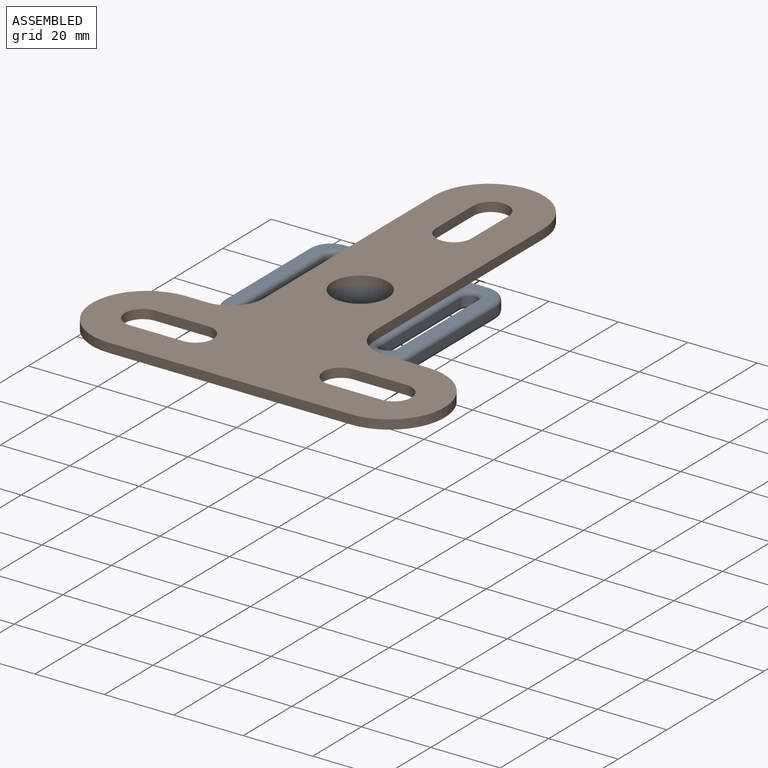
[diagram: assembled view]
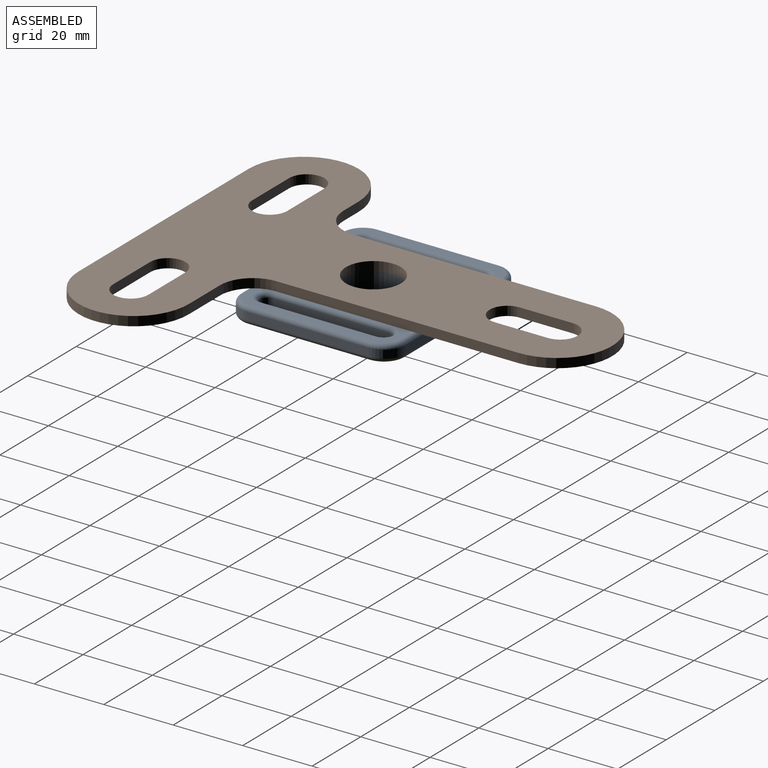
[diagram: assembled view, second angle]
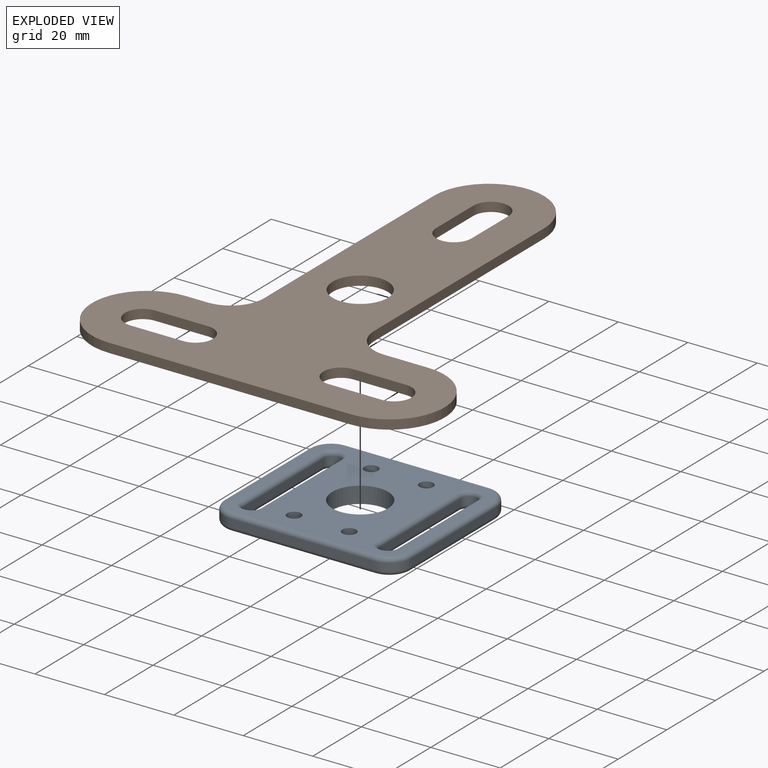
[diagram: exploded view]
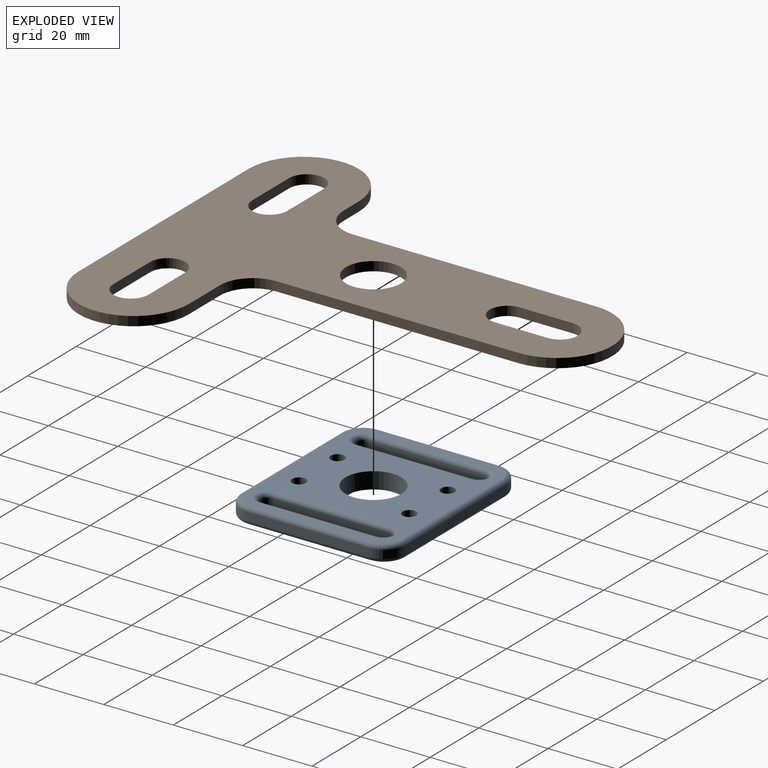
[diagram: exploded view, second angle]
ASSEMBLY  parts=2 mates=2
PART A: 55 faces, bbox 55x48.7x4.8 mm
  f0: plane 51.44x45.09mm, normal (0,0,1), area 1471.5mm2, adj f15,f19,f20,f21,f22,f31,f32,f33
  f1: plane 51.44x45.09mm, normal (0,0,-1), area 1471.5mm2, adj f15,f19,f20,f21,f22,f23,f24,f25
  f2: plane 41.28x2.22mm, normal (0,1,0), area 91.7mm2, adj f3,f18,f25,f31
  f3: cylinder r=6.35mm len=6.35mm, axis (0,0,-1), area 22.2mm2, adj f2,f4,f23,f32
  f4: plane 34.93x2.22mm, normal (-1,0,0), area 77.6mm2, adj f3,f5,f24,f34
  f5: cylinder r=6.35mm len=6.35mm, axis (0,0,-1), area 22.2mm2, adj f4,f6,f26,f36
  f6: plane 41.28x2.22mm, normal (0,-1,0), area 91.7mm2, adj f5,f7,f28,f38
  f7: cylinder r=6.35mm len=6.35mm, axis (0,0,-1), area 22.2mm2, adj f6,f8,f30,f37
  f8: plane 34.93x2.22mm, normal (1,0,0), area 77.6mm2, adj f7,f18,f29,f35
  f9: plane 33.33x2.22mm, normal (1,0,0), area 74.1mm2, adj f10,f16,f39,f49
  f10: cylinder r=2.39mm len=4.78mm, axis (0,0,-1), area 16.7mm2, adj f9,f11,f40,f47
  f11: plane 33.33x2.22mm, normal (-1,0,0), area 74.1mm2, adj f10,f16,f42,f48
  f12: plane 33.33x2.22mm, normal (1,0,0), area 74.1mm2, adj f13,f17,f43,f53
  f13: cylinder r=2.39mm len=4.78mm, axis (0,0,-1), area 16.7mm2, adj f12,f14,f44,f51
  f14: plane 33.33x2.22mm, normal (-1,0,0), area 74.1mm2, adj f13,f17,f46,f52
  f15: cylinder r=8.06mm len=16.13mm, axis (0,0,-1), area 241.3mm2, adj f0,f1
  f16: cylinder r=2.39mm len=4.78mm, axis (0,0,-1), area 16.7mm2, adj f9,f11,f41,f50
  f17: cylinder r=2.39mm len=4.78mm, axis (0,0,-1), area 16.7mm2, adj f12,f14,f45,f54
  f18: cylinder r=6.35mm len=6.35mm, axis (0,0,-1), area 22.2mm2, adj f2,f8,f27,f33
  f19: cylinder r=1.98mm len=4.76mm, axis (0,0,1), area 59.3mm2, adj f0,f1
  f20: cylinder r=1.98mm len=4.76mm, axis (0,0,1), area 59.3mm2, adj f0,f1
  f21: cylinder r=1.98mm len=4.76mm, axis (0,0,1), area 59.3mm2, adj f0,f1
  f22: cylinder r=1.98mm len=4.76mm, axis (0,0,1), area 59.3mm2, adj f0,f1
  f23: torus R=5.08mm, axis (0,0,1), area 18.5mm2, adj f1,f3,f24,f25
  f24: cylinder r=1.27mm len=34.93mm, axis (0,-1,0), area 69.7mm2, adj f1,f4,f23,f26
  f25: cylinder r=1.27mm len=41.28mm, axis (-1,0,0), area 82.3mm2, adj f1,f2,f23,f27
  f26: torus R=5.08mm, axis (0,0,1), area 18.5mm2, adj f1,f5,f24,f28
  f27: torus R=5.08mm, axis (0,0,1), area 18.5mm2, adj f1,f18,f25,f29
  f28: cylinder r=1.27mm len=41.28mm, axis (1,0,0), area 82.3mm2, adj f1,f6,f26,f30
  f29: cylinder r=1.27mm len=34.93mm, axis (0,1,0), area 69.7mm2, adj f1,f8,f27,f30
  f30: torus R=5.08mm, axis (0,0,1), area 18.5mm2, adj f1,f7,f28,f29
  f31: cylinder r=1.27mm len=41.28mm, axis (1,0,0), area 82.3mm2, adj f0,f2,f32,f33
  f32: torus R=5.08mm, axis (0,0,1), area 18.5mm2, adj f0,f3,f31,f34
  f33: torus R=5.08mm, axis (0,0,1), area 18.5mm2, adj f0,f18,f31,f35
  f34: cylinder r=1.27mm len=34.93mm, axis (0,1,0), area 69.7mm2, adj f0,f4,f32,f36
  f35: cylinder r=1.27mm len=34.93mm, axis (0,-1,0), area 69.7mm2, adj f0,f8,f33,f37
  f36: torus R=5.08mm, axis (0,0,1), area 18.5mm2, adj f0,f5,f34,f38
  f37: torus R=5.08mm, axis (0,0,1), area 18.5mm2, adj f0,f7,f35,f38
  f38: cylinder r=1.27mm len=41.28mm, axis (-1,0,0), area 82.3mm2, adj f0,f6,f36,f37
  f39: cylinder r=1.27mm len=33.33mm, axis (0,1,0), area 66.5mm2, adj f1,f9,f40,f41
  f40: torus R=3.66mm, axis (0,0,1), area 17.9mm2, adj f1,f10,f39,f42
  f41: torus R=3.66mm, axis (0,0,1), area 17.9mm2, adj f1,f16,f39,f42
  f42: cylinder r=1.27mm len=33.33mm, axis (0,-1,0), area 66.5mm2, adj f1,f11,f40,f41
  f43: cylinder r=1.27mm len=33.33mm, axis (0,1,0), area 66.5mm2, adj f1,f12,f44,f45
  f44: torus R=3.66mm, axis (0,0,1), area 17.9mm2, adj f1,f13,f43,f46
  f45: torus R=3.66mm, axis (0,0,1), area 17.9mm2, adj f1,f17,f43,f46
  f46: cylinder r=1.27mm len=33.33mm, axis (0,-1,0), area 66.5mm2, adj f1,f14,f44,f45
  f47: torus R=3.66mm, axis (0,0,1), area 17.9mm2, adj f0,f10,f48,f49
  f48: cylinder r=1.27mm len=33.33mm, axis (0,1,0), area 66.5mm2, adj f0,f11,f47,f50
  f49: cylinder r=1.27mm len=33.33mm, axis (0,-1,0), area 66.5mm2, adj f0,f9,f47,f50
  f50: torus R=3.66mm, axis (0,0,1), area 17.9mm2, adj f0,f16,f48,f49
  f51: torus R=3.66mm, axis (0,0,1), area 17.9mm2, adj f0,f13,f52,f53
  f52: cylinder r=1.27mm len=33.33mm, axis (0,1,0), area 66.5mm2, adj f0,f14,f51,f54
  f53: cylinder r=1.27mm len=33.33mm, axis (0,-1,0), area 66.5mm2, adj f0,f12,f51,f54
  f54: torus R=3.66mm, axis (0,0,1), area 17.9mm2, adj f0,f17,f52,f53
PART B: 25 faces, bbox 101.6x127x2.7 mm
  f0: plane 127x101.6mm, normal (0,0,1), area 5058.8mm2, adj f2,f3,f4,f5,f6,f7,f8,f9
  f1: plane 127x101.6mm, normal (0,0,-1), area 5058.8mm2, adj f2,f3,f4,f5,f6,f7,f8,f9
  f2: cylinder r=9.53mm len=9.53mm, axis (0,0,-1), area 39.9mm2, adj f0,f1,f3,f11
  f3: plane 6.35x2.67mm, normal (0,1,0), area 16.9mm2, adj f0,f1,f2,f4
  f4: cylinder r=15.88mm len=31.75mm, axis (0,0,-1), area 133mm2, adj f0,f1,f3,f5
  f5: plane 69.85x2.67mm, normal (0,-1,0), area 186.3mm2, adj f0,f1,f4,f6
  f6: cylinder r=15.88mm len=31.75mm, axis (0,0,-1), area 133mm2, adj f0,f1,f5,f7
  f7: plane 12.7x2.67mm, normal (0,1,0), area 33.9mm2, adj f0,f1,f6,f8
  f8: cylinder r=9.53mm len=9.53mm, axis (0,0,-1), area 39.9mm2, adj f0,f1,f7,f9
  f9: plane 69.85x2.67mm, normal (1,0,0), area 186.3mm2, adj f0,f1,f8,f10
  f10: cylinder r=15.88mm len=31.75mm, axis (0,0,-1), area 133mm2, adj f0,f1,f9,f11
  f11: plane 69.85x2.67mm, normal (-1,0,0), area 186.3mm2, adj f0,f1,f2,f10
  f12: cylinder r=7.94mm len=15.88mm, axis (0,0,1), area 133mm2, adj f0,f1
  f13: cylinder r=5.08mm len=10.16mm, axis (0,0,1), area 42.6mm2, adj f0,f1,f14,f16
  f14: plane 15.24x2.67mm, normal (0,-1,0), area 40.6mm2, adj f0,f1,f13,f15
  f15: cylinder r=5.08mm len=10.16mm, axis (0,0,1), area 42.6mm2, adj f0,f1,f14,f16
  f16: plane 15.24x2.67mm, normal (0,1,0), area 40.6mm2, adj f0,f1,f13,f15
  f17: cylinder r=5.08mm len=10.16mm, axis (0,0,1), area 42.6mm2, adj f0,f1,f18,f20
  f18: plane 15.24x2.67mm, normal (0,-1,0), area 40.6mm2, adj f0,f1,f17,f19
  f19: cylinder r=5.08mm len=10.16mm, axis (0,0,1), area 42.6mm2, adj f0,f1,f18,f20
  f20: plane 15.24x2.67mm, normal (0,1,0), area 40.6mm2, adj f0,f1,f17,f19
  f21: cylinder r=5.08mm len=10.16mm, axis (0,0,1), area 42.6mm2, adj f0,f1,f22,f24
  f22: plane 15.24x2.67mm, normal (1,0,0), area 40.6mm2, adj f0,f1,f21,f23
  f23: cylinder r=5.08mm len=10.16mm, axis (0,0,1), area 42.6mm2, adj f0,f1,f22,f24
  f24: plane 15.24x2.67mm, normal (-1,0,0), area 40.6mm2, adj f0,f1,f21,f23
PLACE A t=(36.03,10.9,-22.29)mm
PLACE B t=(36.03,63.8,-17.52)mm
MATE planar A.f15 <-> B.f1  axis (0,0,1) through (36.03,10.9,-17.52)mm
MATE cylindrical B.f12 <-> A.f15  axis (0,0,1) through (36.03,10.9,-14.86)mm
